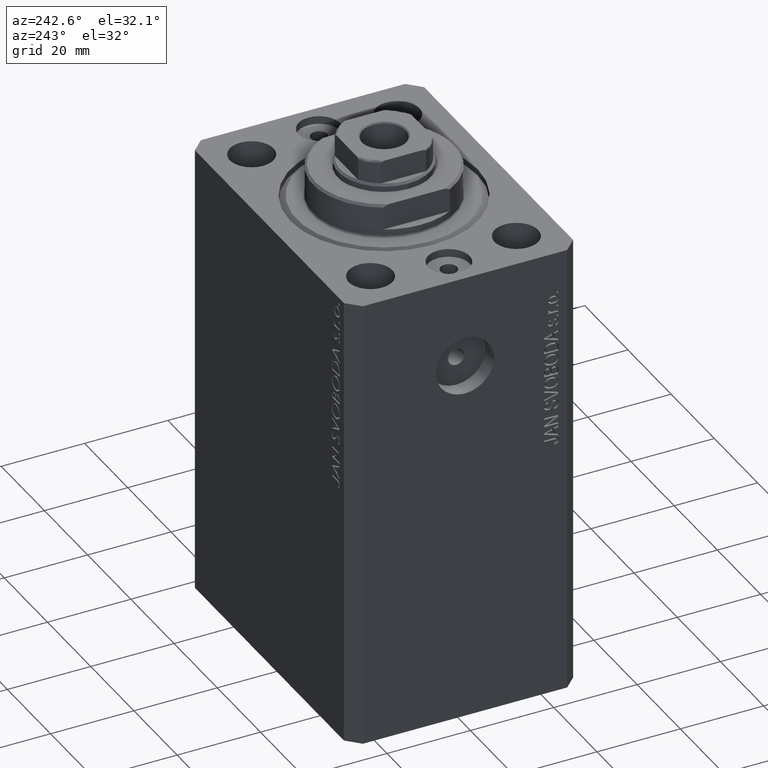
[diagram: clean part render]
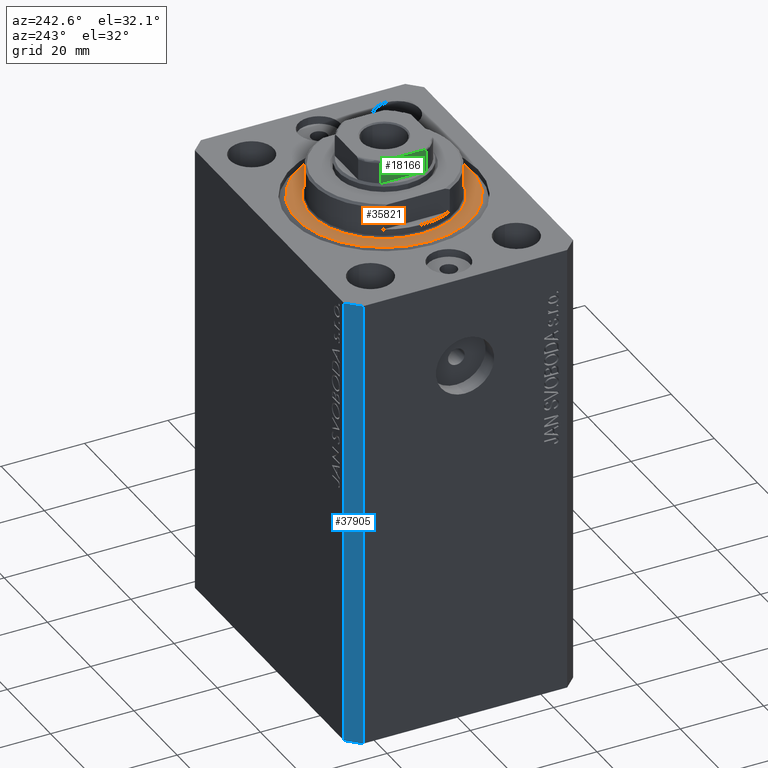
[diagram: same view with three faces highlighted in distinct colors, each labeled with its STEP entity id]
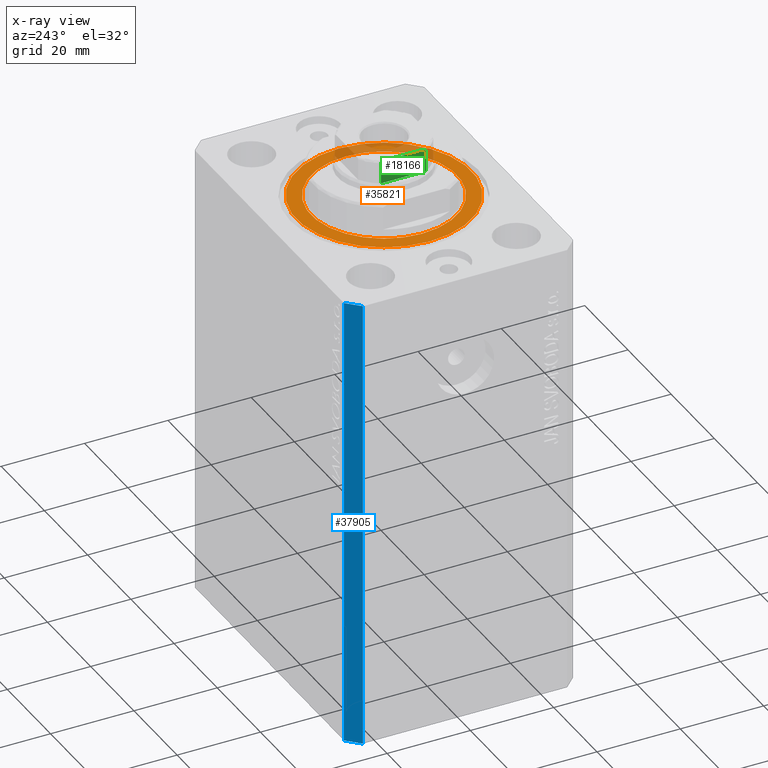
[diagram: x-ray of the same camera — body ghosted, the three highlighted faces saturated]
A machine part, auxiliary view with three faces highlighted in distinct colors.
The next image is the same camera in x-ray (body ghosted, the three faces saturated) — at least one of them is partly hidden behind the body in this view.
Their STEP definitions:

[orange] entity #35821 — the highlighted planar face has unit normal (0, 0, -1).
#1720 = EDGE_CURVE ( 'NONE', #40514, #11195, #14703, .T. ) ;
#2339 = DIRECTION ( 'NONE',  ( -0.000000000000000000, -0.000000000000000000, -1.000000000000000000 ) ) ;
#4145 = DIRECTION ( 'NONE',  ( 1.000000000000000000, 0.000000000000000000, 0.000000000000000000 ) ) ;
#4608 = DIRECTION ( 'NONE',  ( 1.000000000000000000, 0.000000000000000000, 0.000000000000000000 ) ) ;
#10285 = ORIENTED_EDGE ( 'NONE', *, *, #39689, .T. ) ;
#10655 = CARTESIAN_POINT ( 'NONE',  ( 0.000000000000000000, 0.000000000000000000, 0.000000000000000000 ) ) ;
#11195 = VERTEX_POINT ( 'NONE', #37497 ) ;
#11333 = DIRECTION ( 'NONE',  ( -0.000000000000000000, -0.000000000000000000, -1.000000000000000000 ) ) ;
#11832 = AXIS2_PLACEMENT_3D ( 'NONE', #29622, #33212, #40394 ) ;
#12289 = EDGE_CURVE ( 'NONE', #28042, #20292, #22774, .T. ) ;
#13795 = EDGE_CURVE ( 'NONE', #20292, #28042, #28656, .T. ) ;
#14289 = AXIS2_PLACEMENT_3D ( 'NONE', #10655, #20331, #4145 ) ;
#14703 = CIRCLE ( 'NONE', #25486, 20.99999999999998934 ) ;
#14824 = AXIS2_PLACEMENT_3D ( 'NONE', #32914, #2339, #18523 ) ;
#14935 = DIRECTION ( 'NONE',  ( 1.000000000000000000, 0.000000000000000000, 0.000000000000000000 ) ) ;
#18523 = DIRECTION ( 'NONE',  ( 1.000000000000000000, 0.000000000000000000, 0.000000000000000000 ) ) ;
#19584 = EDGE_LOOP ( 'NONE', ( #38697, #10285 ) ) ;
#19715 = FACE_OUTER_BOUND ( 'NONE', #19584, .T. ) ;
#20292 = VERTEX_POINT ( 'NONE', #38107 ) ;
#20331 = DIRECTION ( 'NONE',  ( 0.000000000000000000, 0.000000000000000000, 1.000000000000000000 ) ) ;
#21250 = DIRECTION ( 'NONE',  ( 0.000000000000000000, 0.000000000000000000, 1.000000000000000000 ) ) ;
#22774 = CIRCLE ( 'NONE', #37848, 17.50000000000000000 ) ;
#24601 = CARTESIAN_POINT ( 'NONE',  ( 0.000000000000000000, 0.000000000000000000, 0.000000000000000000 ) ) ;
#24616 = CARTESIAN_POINT ( 'NONE',  ( 0.000000000000000000, 0.000000000000000000, 0.000000000000000000 ) ) ;
#25486 = AXIS2_PLACEMENT_3D ( 'NONE', #24601, #11333, #14935 ) ;
#26816 = EDGE_LOOP ( 'NONE', ( #42789, #33504 ) ) ;
#28042 = VERTEX_POINT ( 'NONE', #41088 ) ;
#28656 = CIRCLE ( 'NONE', #14289, 17.50000000000000000 ) ;
#29622 = CARTESIAN_POINT ( 'NONE',  ( 0.000000000000000000, 0.000000000000000000, 0.000000000000000000 ) ) ;
#32914 = CARTESIAN_POINT ( 'NONE',  ( 0.000000000000000000, 0.000000000000000000, 0.000000000000000000 ) ) ;
#33212 = DIRECTION ( 'NONE',  ( 0.000000000000000000, 0.000000000000000000, 1.000000000000000000 ) ) ;
#33504 = ORIENTED_EDGE ( 'NONE', *, *, #12289, .T. ) ;
#35177 = CARTESIAN_POINT ( 'NONE',  ( 20.99999999999998934, 0.000000000000000000, 0.000000000000000000 ) ) ;
#35821 = ADVANCED_FACE ( 'NONE', ( #36602, #19715 ), #43770, .F. ) ;
#36602 = FACE_BOUND ( 'NONE', #26816, .T. ) ;
#37497 = CARTESIAN_POINT ( 'NONE',  ( -20.99999999999998934, 2.663606788145492628E-15, 0.000000000000000000 ) ) ;
#37848 = AXIS2_PLACEMENT_3D ( 'NONE', #24616, #21250, #4608 ) ;
#38107 = CARTESIAN_POINT ( 'NONE',  ( 17.50000000000000000, 0.000000000000000000, -2.168404344971008868E-16 ) ) ;
#38697 = ORIENTED_EDGE ( 'NONE', *, *, #1720, .T. ) ;
#39210 = CIRCLE ( 'NONE', #14824, 20.99999999999998934 ) ;
#39689 = EDGE_CURVE ( 'NONE', #11195, #40514, #39210, .T. ) ;
#40394 = DIRECTION ( 'NONE',  ( 1.000000000000000000, 0.000000000000000000, -0.000000000000000000 ) ) ;
#40514 = VERTEX_POINT ( 'NONE', #35177 ) ;
#41088 = CARTESIAN_POINT ( 'NONE',  ( -17.50000000000000000, 2.143131898507868643E-15, -2.168404344971008868E-16 ) ) ;
#42789 = ORIENTED_EDGE ( 'NONE', *, *, #13795, .T. ) ;
#43770 = PLANE ( 'NONE',  #11832 ) ;

[blue] entity #37905 — the highlighted planar face has unit normal (-0.7071, 0.7071, 0).
#1081 = ORIENTED_EDGE ( 'NONE', *, *, #16865, .F. ) ;
#1408 = CARTESIAN_POINT ( 'NONE',  ( -34.49999999999999289, 27.50000000000000000, -110.0000000000000000 ) ) ;
#2082 = LINE ( 'NONE', #1408, #3599 ) ;
#2753 = EDGE_CURVE ( 'NONE', #17158, #33331, #17827, .T. ) ;
#3188 = VERTEX_POINT ( 'NONE', #28572 ) ;
#3599 = VECTOR ( 'NONE', #29279, 1000.000000000000000 ) ;
#4080 = CARTESIAN_POINT ( 'NONE',  ( -34.49999999999999289, 27.50000000000000000, -110.0000000000000000 ) ) ;
#5155 = ORIENTED_EDGE ( 'NONE', *, *, #39738, .F. ) ;
#5354 = CARTESIAN_POINT ( 'NONE',  ( -37.49999999999999289, 24.50000000000000000, 0.000000000000000000 ) ) ;
#10217 = CARTESIAN_POINT ( 'NONE',  ( -34.49999999999999289, 27.50000000000000000, -110.0000000000000000 ) ) ;
#11252 = FACE_OUTER_BOUND ( 'NONE', #14735, .T. ) ;
#14453 = CARTESIAN_POINT ( 'NONE',  ( -37.49999999999999289, 24.50000000000000000, -110.0000000000000000 ) ) ;
#14735 = EDGE_LOOP ( 'NONE', ( #5155, #1081, #17210, #20904 ) ) ;
#16865 = EDGE_CURVE ( 'NONE', #29115, #3188, #2082, .T. ) ;
#17158 = VERTEX_POINT ( 'NONE', #35300 ) ;
#17210 = ORIENTED_EDGE ( 'NONE', *, *, #24838, .T. ) ;
#17827 = LINE ( 'NONE', #14453, #25517 ) ;
#20904 = ORIENTED_EDGE ( 'NONE', *, *, #2753, .T. ) ;
#21277 = VECTOR ( 'NONE', #25479, 1000.000000000000000 ) ;
#21389 = DIRECTION ( 'NONE',  ( -0.7071067811865471286, -0.7071067811865479058, 0.000000000000000000 ) ) ;
#23931 = LINE ( 'NONE', #10217, #40014 ) ;
#24838 = EDGE_CURVE ( 'NONE', #29115, #17158, #23931, .T. ) ;
#25479 = DIRECTION ( 'NONE',  ( -0.7071067811865471286, -0.7071067811865479058, 0.000000000000000000 ) ) ;
#25517 = VECTOR ( 'NONE', #41882, 1000.000000000000000 ) ;
#28572 = CARTESIAN_POINT ( 'NONE',  ( -34.49999999999999289, 27.50000000000000000, 0.000000000000000000 ) ) ;
#29115 = VERTEX_POINT ( 'NONE', #39365 ) ;
#29279 = DIRECTION ( 'NONE',  ( 0.000000000000000000, 0.000000000000000000, 1.000000000000000000 ) ) ;
#32449 = LINE ( 'NONE', #38976, #21277 ) ;
#33331 = VERTEX_POINT ( 'NONE', #5354 ) ;
#35300 = CARTESIAN_POINT ( 'NONE',  ( -37.49999999999999289, 24.50000000000000000, -110.0000000000000000 ) ) ;
#37731 = AXIS2_PLACEMENT_3D ( 'NONE', #4080, #41158, #21389 ) ;
#37905 = ADVANCED_FACE ( 'NONE', ( #11252 ), #41618, .T. ) ;
#38976 = CARTESIAN_POINT ( 'NONE',  ( -34.49999999999999289, 27.50000000000000000, 0.000000000000000000 ) ) ;
#39365 = CARTESIAN_POINT ( 'NONE',  ( -34.49999999999999289, 27.50000000000000000, -110.0000000000000000 ) ) ;
#39738 = EDGE_CURVE ( 'NONE', #3188, #33331, #32449, .T. ) ;
#40014 = VECTOR ( 'NONE', #41690, 1000.000000000000000 ) ;
#41158 = DIRECTION ( 'NONE',  ( -0.7071067811865479058, 0.7071067811865471286, 0.000000000000000000 ) ) ;
#41618 = PLANE ( 'NONE',  #37731 ) ;
#41690 = DIRECTION ( 'NONE',  ( -0.7071067811865471286, -0.7071067811865479058, 0.000000000000000000 ) ) ;
#41882 = DIRECTION ( 'NONE',  ( 0.000000000000000000, 0.000000000000000000, 1.000000000000000000 ) ) ;

[green] entity #18166 — the highlighted planar face has unit normal (1, 0, 0).
#1014 = CARTESIAN_POINT ( 'NONE',  ( -8.999999999999998224, 4.775913644518307244, 115.0781460743083215 ) ) ;
#1389 = CARTESIAN_POINT ( 'NONE',  ( -8.999999999999998224, -5.298186678102076108, 114.8338781215005042 ) ) ;
#1824 = CARTESIAN_POINT ( 'NONE',  ( -9.000000000000001776, -4.778533838065911254, 115.0778291476469661 ) ) ;
#1991 = VECTOR ( 'NONE', #15055, 1000.000000000000000 ) ;
#2382 = EDGE_CURVE ( 'NONE', #13944, #43163, #20423, .T. ) ;
#4982 = CARTESIAN_POINT ( 'NONE',  ( -9.000000000000001776, -5.408326913195983465, 114.5999999999999801 ) ) ;
#5725 = B_SPLINE_CURVE_WITH_KNOTS ( 'NONE', 3,
 ( #31594, #21485, #1014, #37295, #10691, #16815, #33703, #30538, #38564, #9869 ),
 .UNSPECIFIED., .F., .F.,
 ( 4, 2, 2, 2, 4 ),
 ( 0.000000000000000000, 0.0006221106941441185327, 0.0009331660412161778533, 0.001088693714752207459, 0.001244221388288237065 ),
 .UNSPECIFIED. ) ;
#7566 = EDGE_CURVE ( 'NONE', #14979, #13944, #31130, .T. ) ;
#9869 = CARTESIAN_POINT ( 'NONE',  ( -9.000000000000000000, 5.408326913195986130, 114.5999999999999801 ) ) ;
#10389 = CARTESIAN_POINT ( 'NONE',  ( -9.000000000000000000, 8.999999999999998224, 115.1000000000000085 ) ) ;
#10442 = VECTOR ( 'NONE', #30987, 1000.000000000000000 ) ;
#10691 = CARTESIAN_POINT ( 'NONE',  ( -8.999999999999998224, 5.173732970196586400, 114.9331808643798354 ) ) ;
#11872 = DIRECTION ( 'NONE',  ( -9.637352644315595243E-17, 1.000000000000000000, 0.000000000000000000 ) ) ;
#13535 = CARTESIAN_POINT ( 'NONE',  ( -9.000000000000001776, -5.408326913195983465, 109.5999999999999943 ) ) ;
#13755 = ORIENTED_EDGE ( 'NONE', *, *, #26988, .F. ) ;
#13944 = VERTEX_POINT ( 'NONE', #13535 ) ;
#14823 = CARTESIAN_POINT ( 'NONE',  ( -9.000000000000000000, 5.408326913195986130, -0.001000000000001000089 ) ) ;
#14867 = CARTESIAN_POINT ( 'NONE',  ( -8.999999999999998224, -5.335664150027714214, 114.7951843380013202 ) ) ;
#14979 = VERTEX_POINT ( 'NONE', #16635 ) ;
#15055 = DIRECTION ( 'NONE',  ( -0.000000000000000000, -0.000000000000000000, 1.000000000000000000 ) ) ;
#15527 = ORIENTED_EDGE ( 'NONE', *, *, #43405, .T. ) ;
#15741 = CARTESIAN_POINT ( 'NONE',  ( -9.000000000000000000, 4.358898943540674864, 115.1000000000000085 ) ) ;
#16635 = CARTESIAN_POINT ( 'NONE',  ( -9.000000000000000000, 5.408326913195984353, 109.5999999999999943 ) ) ;
#16815 = CARTESIAN_POINT ( 'NONE',  ( -9.000000000000003553, 5.297634495023411993, 114.8344228052780238 ) ) ;
#17143 = DIRECTION ( 'NONE',  ( 9.637352644315595243E-17, -1.000000000000000000, 0.000000000000000000 ) ) ;
#17437 = ORIENTED_EDGE ( 'NONE', *, *, #27159, .F. ) ;
#18075 = CARTESIAN_POINT ( 'NONE',  ( -9.000000000000000000, -4.358898943540675752, 115.1000000000000085 ) ) ;
#18166 = ADVANCED_FACE ( 'NONE', ( #33226 ), #25812, .F. ) ;
#19422 = VERTEX_POINT ( 'NONE', #18075 ) ;
#19645 = B_SPLINE_CURVE_WITH_KNOTS ( 'NONE', 3,
 ( #4982, #35997, #28590, #14867, #1389, #42733, #39139, #1824, #22060, #21622 ),
 .UNSPECIFIED., .F., .F.,
 ( 4, 2, 2, 2, 4 ),
 ( 2.823925224926892107E-17, 0.0001582447020888292245, 0.0003164894041776302055, 0.0006329788083552581341, 0.001265957616710498487 ),
 .UNSPECIFIED. ) ;
#20278 = VERTEX_POINT ( 'NONE', #41918 ) ;
#20423 = LINE ( 'NONE', #28061, #10442 ) ;
#21374 = VECTOR ( 'NONE', #17143, 1000.000000000000000 ) ;
#21485 = CARTESIAN_POINT ( 'NONE',  ( -9.000000000000001776, 4.569272810556670450, 115.0999999999999801 ) ) ;
#21622 = CARTESIAN_POINT ( 'NONE',  ( -9.000000000000000000, -4.358898943540675752, 115.1000000000000085 ) ) ;
#22060 = CARTESIAN_POINT ( 'NONE',  ( -8.999999999999996447, -4.569278586016981336, 115.0999999999999943 ) ) ;
#23306 = EDGE_LOOP ( 'NONE', ( #38039, #15527, #13755, #28240, #17437, #42619 ) ) ;
#25812 = PLANE ( 'NONE',  #28034 ) ;
#26988 = EDGE_CURVE ( 'NONE', #31074, #19422, #30635, .T. ) ;
#27159 = EDGE_CURVE ( 'NONE', #14979, #20278, #28988, .T. ) ;
#28034 = AXIS2_PLACEMENT_3D ( 'NONE', #39305, #39525, #11872 ) ;
#28061 = CARTESIAN_POINT ( 'NONE',  ( -9.000000000000001776, -5.408326913195983465, -0.001000000000001000089 ) ) ;
#28240 = ORIENTED_EDGE ( 'NONE', *, *, #34693, .T. ) ;
#28590 = CARTESIAN_POINT ( 'NONE',  ( -8.999999999999998224, -5.390954572107319542, 114.7053628521400270 ) ) ;
#28988 = LINE ( 'NONE', #14823, #1991 ) ;
#30538 = CARTESIAN_POINT ( 'NONE',  ( -9.000000000000001776, 5.390945448132529627, 114.7054816538970385 ) ) ;
#30635 = LINE ( 'NONE', #10389, #21374 ) ;
#30987 = DIRECTION ( 'NONE',  ( -0.000000000000000000, -0.000000000000000000, 1.000000000000000000 ) ) ;
#31074 = VERTEX_POINT ( 'NONE', #15741 ) ;
#31130 = LINE ( 'NONE', #41484, #31293 ) ;
#31293 = VECTOR ( 'NONE', #35183, 1000.000000000000000 ) ;
#31594 = CARTESIAN_POINT ( 'NONE',  ( -9.000000000000000000, 4.358898943540674864, 115.1000000000000085 ) ) ;
#33226 = FACE_OUTER_BOUND ( 'NONE', #23306, .T. ) ;
#33703 = CARTESIAN_POINT ( 'NONE',  ( -9.000000000000000000, 5.335288102212762062, 114.7956905402762118 ) ) ;
#34693 = EDGE_CURVE ( 'NONE', #31074, #20278, #5725, .T. ) ;
#35183 = DIRECTION ( 'NONE',  ( 9.637352644315595243E-17, -1.000000000000000000, 0.000000000000000000 ) ) ;
#35997 = CARTESIAN_POINT ( 'NONE',  ( -9.000000000000003553, -5.408326913195984353, 114.6535720727335246 ) ) ;
#37295 = CARTESIAN_POINT ( 'NONE',  ( -9.000000000000003553, 5.074490744525495423, 114.9787200784332839 ) ) ;
#38039 = ORIENTED_EDGE ( 'NONE', *, *, #2382, .T. ) ;
#38564 = CARTESIAN_POINT ( 'NONE',  ( -9.000000000000001776, 5.408326913195985242, 114.6537434673188187 ) ) ;
#39139 = CARTESIAN_POINT ( 'NONE',  ( -8.999999999999996447, -5.077896145217223101, 114.9773016776067038 ) ) ;
#39305 = CARTESIAN_POINT ( 'NONE',  ( -9.000000000000000000, 8.999999999999998224, 115.1000000000000085 ) ) ;
#39525 = DIRECTION ( 'NONE',  ( 1.000000000000000000, 9.637352644315595243E-17, -0.000000000000000000 ) ) ;
#41484 = CARTESIAN_POINT ( 'NONE',  ( -9.000000000000000000, 8.999999999999998224, 109.6000000000000085 ) ) ;
#41918 = CARTESIAN_POINT ( 'NONE',  ( -9.000000000000000000, 5.408326913195986130, 114.5999999999999801 ) ) ;
#42349 = CARTESIAN_POINT ( 'NONE',  ( -9.000000000000001776, -5.408326913195983465, 114.5999999999999801 ) ) ;
#42619 = ORIENTED_EDGE ( 'NONE', *, *, #7566, .T. ) ;
#42733 = CARTESIAN_POINT ( 'NONE',  ( -8.999999999999998224, -5.174818616237105040, 114.9325218846533403 ) ) ;
#43163 = VERTEX_POINT ( 'NONE', #42349 ) ;
#43405 = EDGE_CURVE ( 'NONE', #43163, #19422, #19645, .T. ) ;